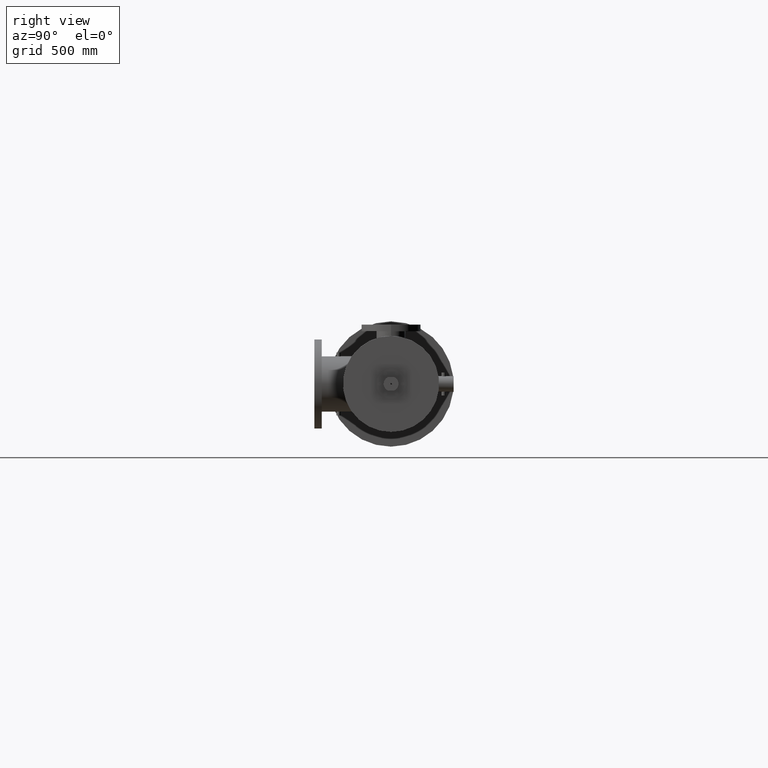
[diagram: clean part render]
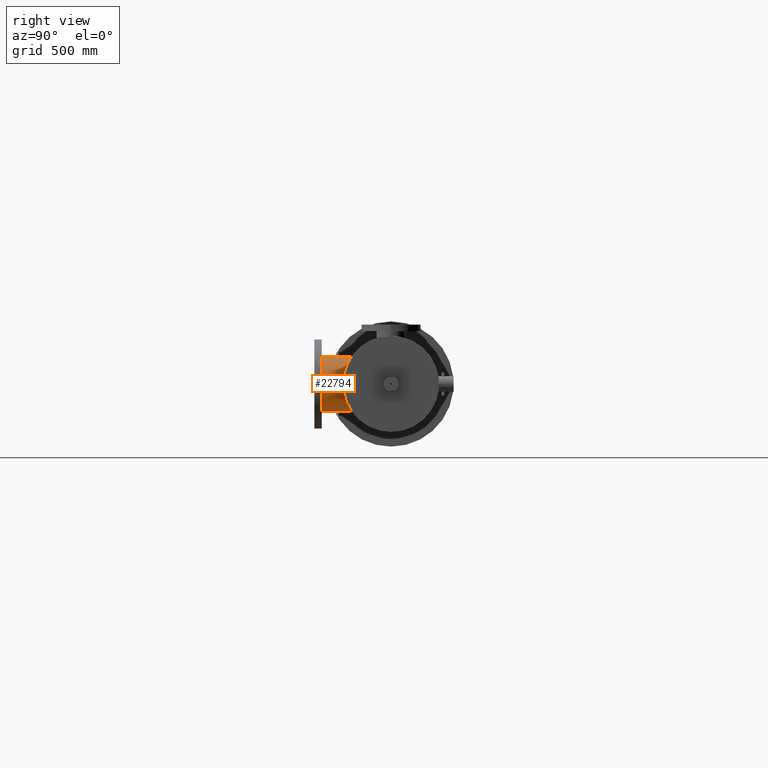
[diagram: same view with one face highlighted and labeled with its STEP entity id]
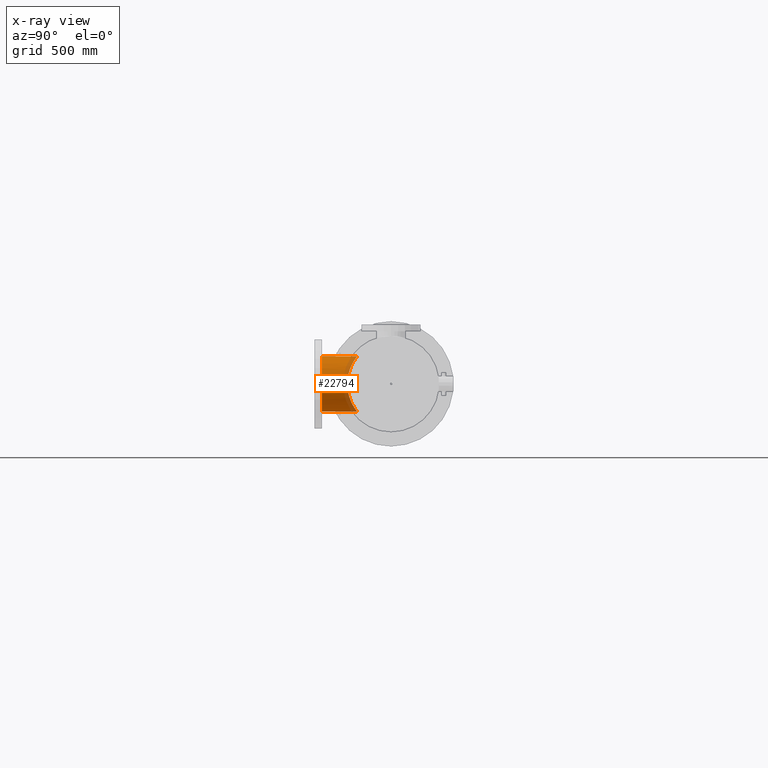
[diagram: x-ray of the same camera — body ghosted, the highlighted face saturated]
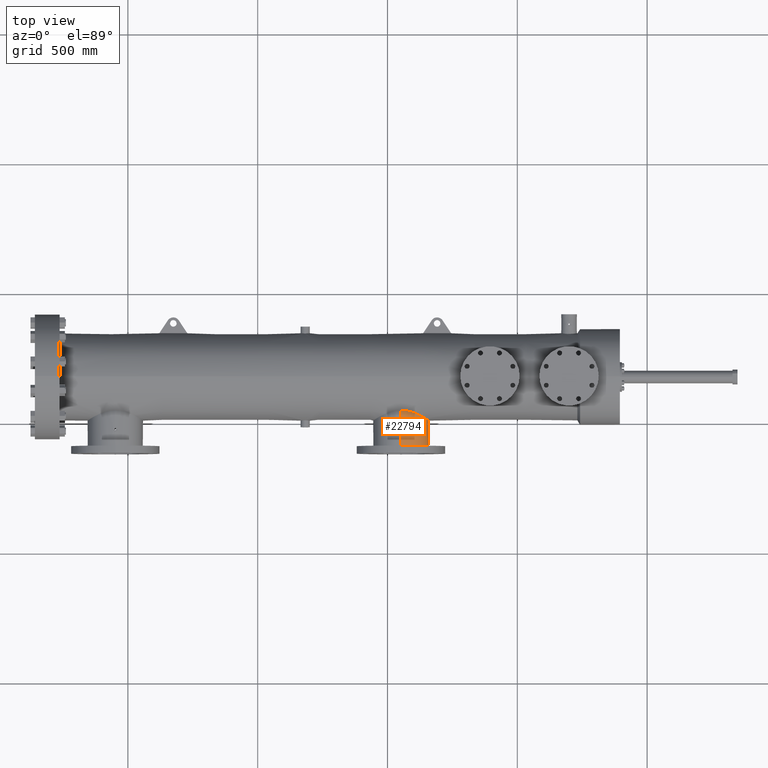
[diagram: same view with one face highlighted and labeled with its STEP entity id]
A machine part, right view. The second image highlights one B-rep face of the part: STEP entity #22794.
The next image is the same camera in x-ray: the body ghosted, the highlighted face saturated — about 16% of this face is hidden behind the body in this view.
A second angle (top view) of the same face is appended — the face is thin or edge-on in the first view.
In plain terms, the highlighted cylindrical surface (edge-blend (fillet) strip) has radius 106.6 mm, axis along (-0, -1, -0).
Its self-contained STEP definition (entity closure, byte-faithful):
#69 = CARTESIAN_POINT ( 'NONE',  ( 754.2548384520098352, 177.5397786504904900, 0.2892845050418509367 ) ) ;
#447 = CARTESIAN_POINT ( 'NONE',  ( 753.8749236517410282, 177.7735012610584704, 1.766765299865173500 ) ) ;
#658 = CARTESIAN_POINT ( 'NONE',  ( 750.3855541936417239, 176.2412953276447354, 4.184640322142247015 ) ) ;
#716 = LINE ( 'NONE', #19864, #3165 ) ;
#727 = EDGE_CURVE ( 'NONE', #9335, #9827, #12488, .T. ) ;
#741 = CARTESIAN_POINT ( 'NONE',  ( 750.1492564820853204, 176.5104973847655856, 4.196067820517943581 ) ) ;
#842 = CARTESIAN_POINT ( 'NONE',  ( 750.2623644285683895, 176.4546765244174651, -4.192273296369847024 ) ) ;
#941 = CARTESIAN_POINT ( 'NONE',  ( 754.1201762186414044, 177.6241405298669065, 1.084158874098487990 ) ) ;
#1095 = CARTESIAN_POINT ( 'NONE',  ( 750.3082377231926330, 176.4116777655992223, -4.189858291017636738 ) ) ;
#1099 = CARTESIAN_POINT ( 'NONE',  ( 750.3707358779988681, 176.0954040126080997, -4.185745948825553064 ) ) ;
#1268 = LINE ( 'NONE', #22371, #11094 ) ;
#1348 = CARTESIAN_POINT ( 'NONE',  ( 750.1387052360765892, 175.8852752453956612, -4.196226897793811084 ) ) ;
#1386 = CARTESIAN_POINT ( 'NONE',  ( 751.8235482011676822, 178.7418424903720791, -3.813343612203149657 ) ) ;
#1551 = CARTESIAN_POINT ( 'NONE',  ( 752.2955889437057522, 178.5705100719954999, -3.557937853033991349 ) ) ;
#1573 = CARTESIAN_POINT ( 'NONE',  ( 750.1691693030006718, 175.8939547221972077, 4.195585073107369389 ) ) ;
#1654 = CARTESIAN_POINT ( 'NONE',  ( 753.3395931786840265, 178.0775165056461731, 2.626627378003344671 ) ) ;
#1721 = CARTESIAN_POINT ( 'NONE',  ( 750.3501728843214096, 179.0275632099823611, -4.189564349351632799 ) ) ;
#1740 = CARTESIAN_POINT ( 'NONE',  ( 752.5195635682141528, 178.4767535566233505, 3.405324754415917976 ) ) ;
#1818 = CARTESIAN_POINT ( 'NONE',  ( 750.2859719614235701, 175.9639373342370732, 4.191068486800307191 ) ) ;
#2535 = DIRECTION ( 'NONE',  ( -0.0000000000000000000, -1.000000000000000000, -0.0000000000000000000 ) ) ;
#2557 = ORIENTED_EDGE ( 'NONE', *, *, #6281, .T. ) ;
#2633 = CARTESIAN_POINT ( 'NONE',  ( 750.3773198795616963, 176.2825580649377173, 4.185261717193525577 ) ) ;
#2720 = CARTESIAN_POINT ( 'NONE',  ( 750.2082162776287078, 176.4877656685664817, 4.194437688984287149 ) ) ;
#2780 = FACE_OUTER_BOUND ( 'NONE', #18796, .T. ) ;
#2786 = VERTEX_POINT ( 'NONE', #8528 ) ;
#2905 = CARTESIAN_POINT ( 'NONE',  ( 750.3218242918072747, 176.3951191159571295, -4.189039397858866920 ) ) ;
#3165 = VECTOR ( 'NONE', #10177, 39.37007874015748143 ) ;
#3323 = CARTESIAN_POINT ( 'NONE',  ( 750.0866480550697588, 175.8770782327513587, -4.196850393700797710 ) ) ;
#3442 = CARTESIAN_POINT ( 'NONE',  ( 750.7694801686928940, 178.9872346955677358, -4.139789755087626588 ) ) ;
#3523 = CARTESIAN_POINT ( 'NONE',  ( 751.5740776184001106, 178.8175590935427692, -3.918731291187877108 ) ) ;
#3546 = CARTESIAN_POINT ( 'NONE',  ( 750.1078141414315041, 175.8791532820270049, 4.196688849958412071 ) ) ;
#3617 = CARTESIAN_POINT ( 'NONE',  ( 750.1368286339787801, 179.0331886654802815, 4.196398396866187319 ) ) ;
#3677 = VERTEX_POINT ( 'NONE', #20673 ) ;
#3682 = CARTESIAN_POINT ( 'NONE',  ( 752.8333760062396323, 178.3349145842654195, -3.157676517960938956 ) ) ;
#3778 = CARTESIAN_POINT ( 'NONE',  ( 750.2532266818192284, 175.9370754100347654, 4.192664436283129348 ) ) ;
#3868 = CARTESIAN_POINT ( 'NONE',  ( 750.3215782125311080, 176.0024226410699271, 4.189054754414168968 ) ) ;
#4032 = CARTESIAN_POINT ( 'NONE',  ( 750.0656234997047704, 173.4747881935789451, 4.196850393700797710 ) ) ;
#4490 = LINE ( 'NONE', #4032, #12220 ) ;
#4666 = CARTESIAN_POINT ( 'NONE',  ( 750.1693278154912150, 176.5044185514122717, 4.195614249100918514 ) ) ;
#4672 = EDGE_CURVE ( 'NONE', #9827, #15639, #6925, .T. ) ;
#4716 = CIRCLE ( 'NONE', #11173, 4.196850393700797710 ) ;
#4763 = CARTESIAN_POINT ( 'NONE',  ( 750.2268712676706173, 176.4777918257164231, -4.193761891790220631 ) ) ;
#4855 = CARTESIAN_POINT ( 'NONE',  ( 750.1697710232267582, 176.5042584589429850, -4.195602639200865625 ) ) ;
#4864 = CARTESIAN_POINT ( 'NONE',  ( 754.2261945003223218, 177.5578641426467641, 0.5682045320912116892 ) ) ;
#4937 = CARTESIAN_POINT ( 'NONE',  ( 750.3876603609564881, 176.1989407532446705, -4.184476727991411238 ) ) ;
#5027 = CARTESIAN_POINT ( 'NONE',  ( 750.2357424893084499, 175.9254029565073836, -4.193410374538689034 ) ) ;
#5111 = CARTESIAN_POINT ( 'NONE',  ( 750.3006871778170535, 175.9786441456322166, -4.190268921380118528 ) ) ;
#5281 = CARTESIAN_POINT ( 'NONE',  ( 750.3876603609563745, 176.1776771399300401, -4.184476727991410350 ) ) ;
#5314 = CARTESIAN_POINT ( 'NONE',  ( 753.6869137072308149, 177.8838869677309162, -2.125645124309016420 ) ) ;
#5333 = EDGE_CURVE ( 'NONE', #25156, #9335, #18828, .T. ) ;
#5340 = EDGE_CURVE ( 'NONE', #15639, #5874, #15363, .T. ) ;
#5401 = CARTESIAN_POINT ( 'NONE',  ( 752.4631271447285599, 178.5009106021298066, -3.445295067813475498 ) ) ;
#5481 = CARTESIAN_POINT ( 'NONE',  ( 752.9320428211335638, 178.2872552675820543, -3.068375055365319959 ) ) ;
#5503 = CARTESIAN_POINT ( 'NONE',  ( 750.7707132293395489, 178.9870454133621820, 4.139551514902442442 ) ) ;
#5591 = CARTESIAN_POINT ( 'NONE',  ( 750.1489148107951905, 175.8878246713716180, 4.196036033753565597 ) ) ;
#5656 = CARTESIAN_POINT ( 'NONE',  ( 753.9832488470369753, 177.7082010232193454, -1.506870611404393490 ) ) ;
#5674 = CARTESIAN_POINT ( 'NONE',  ( 750.1011886381764953, 179.0335600387765567, 4.196850393700793269 ) ) ;
#5767 = CARTESIAN_POINT ( 'NONE',  ( 752.8344053023279230, 178.3344239482308922, 3.156769943473807682 ) ) ;
#5844 = CARTESIAN_POINT ( 'NONE',  ( 750.4215204023811339, 179.0216886738506048, 4.182328613457447553 ) ) ;
#5874 = VERTEX_POINT ( 'NONE', #23410 ) ;
#6281 = EDGE_CURVE ( 'NONE', #5874, #3677, #4490, .T. ) ;
#6305 = CARTESIAN_POINT ( 'NONE',  ( 750.3445772704153569, 176.3601487262615706, 4.187572444736312072 ) ) ;
#6590 = CARTESIAN_POINT ( 'NONE',  ( 750.3876603609564881, 176.2199531635239396, 4.184476727991412126 ) ) ;
#6777 = CARTESIAN_POINT ( 'NONE',  ( 750.3855689438372565, 176.2411481793365056, -4.184639166795110832 ) ) ;
#6925 = B_SPLINE_CURVE_WITH_KNOTS ( 'NONE', 3,
 ( #10518, #18144, #10611, #741, #4666, #22301, #2720, #24329, #8390, #22210, #22121, #14603, #18223, #18400, #6305, #20315, #16509, #10430, #2633, #658, #6590, #12451 ),
 .UNSPECIFIED., .F., .F.,
 ( 4, 2, 2, 2, 2, 2, 2, 2, 2, 2, 4 ),
 ( 0.01278227255279495642, 0.01438050809443447257, 0.01597874363607398873, 0.01677786140689813479, 0.01757697917772228086, 0.01917521471936909500, 0.02077345026101590914, 0.02157256803183525001, 0.02237168580265459089, 0.02396992134429083016, 0.02556815688592706595 ),
 .UNSPECIFIED. ) ;
#6949 = CARTESIAN_POINT ( 'NONE',  ( 750.1495534474223632, 176.5104292679137643, -4.196062709181871853 ) ) ;
#6953 = CARTESIAN_POINT ( 'NONE',  ( 750.3671351975998505, 176.0853536213506345, -4.186007685335715323 ) ) ;
#7040 = CARTESIAN_POINT ( 'NONE',  ( 750.1079279548170007, 176.5187284021070013, -4.196688793392740813 ) ) ;
#7202 = CARTESIAN_POINT ( 'NONE',  ( 750.2621818968019625, 175.9430599397970809, -4.192282108215164449 ) ) ;
#7317 = CARTESIAN_POINT ( 'NONE',  ( 754.1156430505930075, 177.6270287797977971, -1.109228928818584592 ) ) ;
#7495 = CARTESIAN_POINT ( 'NONE',  ( 753.1213424978539024, 178.1925859564589416, 2.879897835397924322 ) ) ;
#7577 = CARTESIAN_POINT ( 'NONE',  ( 750.0868910108528098, 175.8770780919922458, 4.196850393700798598 ) ) ;
#7613 = CARTESIAN_POINT ( 'NONE',  ( 754.0916102272088892, 177.6418209777624782, 1.185841002206296846 ) ) ;
#7641 = CARTESIAN_POINT ( 'NONE',  ( 752.5182718562296031, 178.4773113716621253, -3.406255623476134975 ) ) ;
#7666 = CARTESIAN_POINT ( 'NONE',  ( 752.4645146950857679, 178.5003217752642115, 3.444326905804129701 ) ) ;
#7744 = CARTESIAN_POINT ( 'NONE',  ( 750.2084614124869404, 175.9096599794221163, 4.194464308135322561 ) ) ;
#7829 = CARTESIAN_POINT ( 'NONE',  ( 752.6798533526688288, 178.4057160986552049, 3.283870351100931284 ) ) ;
#8153 = CARTESIAN_POINT ( 'NONE',  ( 750.0656234997047704, 175.8770904135598414, -4.196850393700797710 ) ) ;
#8219 = CARTESIAN_POINT ( 'NONE',  ( 750.0656234997047704, 173.6513553879231608, 0.0000000000000000000 ) ) ;
#8390 = CARTESIAN_POINT ( 'NONE',  ( 750.2358754780294703, 176.4723915807141452, 4.193404780977409985 ) ) ;
#8528 = CARTESIAN_POINT ( 'NONE',  ( 750.0656234997047704, 173.6513553879231608, -4.196850393700797710 ) ) ;
#8669 = CARTESIAN_POINT ( 'NONE',  ( 750.3451599910216601, 176.3601637311178365, -4.187546927821843568 ) ) ;
#8710 = CARTESIAN_POINT ( 'NONE',  ( 753.6863099918321041, 177.8842326918440051, 2.126614965322177309 ) ) ;
#8901 = CARTESIAN_POINT ( 'NONE',  ( 750.3794352201969104, 176.2719939882312588, -4.185102105718075727 ) ) ;
#8905 = CARTESIAN_POINT ( 'NONE',  ( 750.2080192460628041, 175.9100201015646405, -4.194444320057789000 ) ) ;
#8990 = CARTESIAN_POINT ( 'NONE',  ( 750.3550461951141415, 176.3416836024207157, -4.186866773333123071 ) ) ;
#8993 = CARTESIAN_POINT ( 'NONE',  ( 750.1890308133184817, 175.9010584878684540, -4.195069240060603555 ) ) ;
#9250 = CARTESIAN_POINT ( 'NONE',  ( 754.1625385293116324, 177.5977865623516720, 0.9131115904358733104 ) ) ;
#9284 = CARTESIAN_POINT ( 'NONE',  ( 754.2450901643849193, 177.5459332373997086, -0.3832412706837314276 ) ) ;
#9335 = VERTEX_POINT ( 'NONE', #17143 ) ;
#9362 = CARTESIAN_POINT ( 'NONE',  ( 754.2557103031377892, 177.5392178284579359, -0.2408215855183126197 ) ) ;
#9445 = CARTESIAN_POINT ( 'NONE',  ( 753.3813822951904058, 178.0549128989774772, -2.573693693428871665 ) ) ;
#9471 = CARTESIAN_POINT ( 'NONE',  ( 750.3794323887688051, 176.1258601037294227, 4.185102326964425856 ) ) ;
#9550 = CARTESIAN_POINT ( 'NONE',  ( 750.6321761789350830, 179.0042356754967443, 4.160829163214375903 ) ) ;
#9615 = CARTESIAN_POINT ( 'NONE',  ( 750.2086083383642290, 179.0335560172611906, -4.196850393700797710 ) ) ;
#9635 = CARTESIAN_POINT ( 'NONE',  ( 750.3508262063343182, 179.0261180314013529, 4.187755192098854273 ) ) ;
#9723 = CARTESIAN_POINT ( 'NONE',  ( 750.3447208485575857, 176.0379831062923017, 4.187562853491638037 ) ) ;
#9744 = CARTESIAN_POINT ( 'NONE',  ( 750.0656234997047704, 179.0335613702432909, -4.196850393700797710 ) ) ;
#9800 = VERTEX_POINT ( 'NONE', #10128 ) ;
#9811 = CARTESIAN_POINT ( 'NONE',  ( 750.0656234997047704, 179.0335613702432909, 4.196850393700797710 ) ) ;
#9827 = VERTEX_POINT ( 'NONE', #19728 ) ;
#9898 = B_SPLINE_CURVE_WITH_KNOTS ( 'NONE', 3,
 ( #4937, #20487, #6777, #8901, #18854, #18508, #12811, #8990, #8669, #2905, #1095, #14700, #842, #22733, #4763, #14871, #24435, #4855, #6949, #7040, #22651, #14620 ),
 .UNSPECIFIED., .F., .F.,
 ( 4, 2, 2, 2, 2, 2, 2, 2, 2, 2, 4 ),
 ( 0.03835105100156003394, 0.03994847126057212566, 0.04074718139007713069, 0.04154589151958214266, 0.04314331177859620503, 0.04474073203761026740, 0.04633815229662433671, 0.04713686242613648880, 0.04793557255564864089, 0.04953299281467192505, 0.05113041307369520921 ),
 .UNSPECIFIED. ) ;
#10050 = CARTESIAN_POINT ( 'NONE',  ( 750.3876603609564881, 176.1989407532446705, 4.184476727991411238 ) ) ;
#10128 = CARTESIAN_POINT ( 'NONE',  ( 750.0656234997047704, 176.5207910929295281, -4.196850393700797710 ) ) ;
#10177 = DIRECTION ( 'NONE',  ( -0.0000000000000000000, -1.000000000000000000, -0.0000000000000000000 ) ) ;
#10430 = CARTESIAN_POINT ( 'NONE',  ( 750.3712318216843187, 176.3026262131130864, 4.185716470693805924 ) ) ;
#10518 = CARTESIAN_POINT ( 'NONE',  ( 750.0656234997047704, 176.5207910929295281, 4.196850393700797710 ) ) ;
#10611 = CARTESIAN_POINT ( 'NONE',  ( 750.1079620766429343, 176.5187126331155412, 4.196687631338667401 ) ) ;
#11051 = CARTESIAN_POINT ( 'NONE',  ( 750.1075475568181901, 175.8791063742857546, -4.196692407593547003 ) ) ;
#11094 = VECTOR ( 'NONE', #2535, 39.37007874015748143 ) ;
#11141 = CARTESIAN_POINT ( 'NONE',  ( 750.3794317102623381, 176.1258704865011566, -4.185102370272788974 ) ) ;
#11173 = AXIS2_PLACEMENT_3D ( 'NONE', #8219, #24252, #23993 ) ;
#11257 = CARTESIAN_POINT ( 'NONE',  ( 752.1808071199725418, 178.6154565871275679, -3.627334411972417794 ) ) ;
#11364 = CARTESIAN_POINT ( 'NONE',  ( 752.1826001093058949, 178.6147738840259933, 3.626293375403966124 ) ) ;
#11430 = CARTESIAN_POINT ( 'NONE',  ( 753.3395630212015703, 178.0775332787701188, -2.626669156601005195 ) ) ;
#11450 = CARTESIAN_POINT ( 'NONE',  ( 750.3082439469051224, 175.9862099839153586, 4.189857952223411175 ) ) ;
#11513 = CARTESIAN_POINT ( 'NONE',  ( 753.1207937956417027, 178.1928689378089246, -2.880489484353740526 ) ) ;
#11534 = CARTESIAN_POINT ( 'NONE',  ( 753.4622756682622366, 178.0105381505901789, 2.465250114881312626 ) ) ;
#11603 = CARTESIAN_POINT ( 'NONE',  ( 754.1503109557182825, 177.6054392330513849, -0.9739175525324126337 ) ) ;
#11631 = CARTESIAN_POINT ( 'NONE',  ( 750.3876603609566018, 176.1779178715195258, 4.184476727991412126 ) ) ;
#11711 = CARTESIAN_POINT ( 'NONE',  ( 753.5016837810378547, 177.9886872354512946, 2.410019465924709614 ) ) ;
#12047 = CARTESIAN_POINT ( 'NONE',  ( 750.0656234997047704, 175.8770904135598414, 4.196850393700797710 ) ) ;
#12220 = VECTOR ( 'NONE', #19396, 39.37007874015748143 ) ;
#12301 = ORIENTED_EDGE ( 'NONE', *, *, #727, .T. ) ;
#12451 = CARTESIAN_POINT ( 'NONE',  ( 750.3876603609564881, 176.1989407532446705, 4.184476727991411238 ) ) ;
#12488 = LINE ( 'NONE', #24983, #22694 ) ;
#12811 = CARTESIAN_POINT ( 'NONE',  ( 750.3671690603856632, 176.3124384759357213, -4.186005245305874034 ) ) ;
#12988 = VERTEX_POINT ( 'NONE', #18010 ) ;
#13059 = CARTESIAN_POINT ( 'NONE',  ( 750.3451141844067251, 176.0376331099129175, -4.187550069629865312 ) ) ;
#13352 = CARTESIAN_POINT ( 'NONE',  ( 754.2625939395530850, 177.5348598011229626, -0.06315026296003170558 ) ) ;
#13369 = CARTESIAN_POINT ( 'NONE',  ( 750.3876603609564881, 176.1989407532446705, 4.184476727991411238 ) ) ;
#13427 = CARTESIAN_POINT ( 'NONE',  ( 753.5022632736547621, 177.9884230845221964, -2.409907915964154324 ) ) ;
#13514 = CARTESIAN_POINT ( 'NONE',  ( 753.9576771709082550, 177.7237017903108551, -1.571706325018916051 ) ) ;
#13533 = CARTESIAN_POINT ( 'NONE',  ( 752.9329301399635597, 178.2868200906314939, 3.067536922142271472 ) ) ;
#13621 = CARTESIAN_POINT ( 'NONE',  ( 750.3636217082448638, 176.0755495972177300, 4.186263058312257535 ) ) ;
#14364 = CARTESIAN_POINT ( 'NONE',  ( 754.1466592818791241, 177.6076922923256234, 0.9816721056354125174 ) ) ;
#14603 = CARTESIAN_POINT ( 'NONE',  ( 750.3083550052011788, 176.4115700044514767, 4.189852175961843450 ) ) ;
#14620 = CARTESIAN_POINT ( 'NONE',  ( 750.0656234997047704, 176.5207910929295281, -4.196850393700797710 ) ) ;
#14700 = CARTESIAN_POINT ( 'NONE',  ( 750.2785538966934382, 176.4413624390762720, -4.191471675472232761 ) ) ;
#14871 = CARTESIAN_POINT ( 'NONE',  ( 750.2082909228722656, 176.4877275957369989, -4.194435081637656104 ) ) ;
#15053 = CARTESIAN_POINT ( 'NONE',  ( 750.3275672641058236, 176.0113730991341470, -4.188671990230826481 ) ) ;
#15132 = CARTESIAN_POINT ( 'NONE',  ( 750.3077715543804516, 175.9864444286617697, -4.189864318341698812 ) ) ;
#15165 = CARTESIAN_POINT ( 'NONE',  ( 751.1805659721160282, 178.9141329935013971, -4.046653355912249950 ) ) ;
#15336 = CARTESIAN_POINT ( 'NONE',  ( 754.2622135399191166, 177.5351007384541617, 0.1488881047873667485 ) ) ;
#15353 = CARTESIAN_POINT ( 'NONE',  ( 751.4455553996302797, 178.8526566629849412, 3.965952249110654027 ) ) ;
#15363 = B_SPLINE_CURVE_WITH_KNOTS ( 'NONE', 3,
 ( #13369, #11631, #21660, #9471, #25407, #15689, #13621, #23270, #9723, #17417, #3868, #11450, #1818, #19565, #25167, #3778, #17578, #7744, #17667, #1573, #5591, #23357, #3546, #7577, #12047 ),
 .UNSPECIFIED., .F., .F.,
 ( 4, 2, 2, 1, 2, 2, 2, 2, 2, 2, 2, 2, 4 ),
 ( 0.02556815688592706595, 0.02716718890150859184, 0.02796670490929832609, 0.02876622091708806034, 0.02956573692487779459, 0.03036525293266753231, 0.03196428494824114092, 0.03276380095602418607, 0.03356331696380723123, 0.03516234897938066983, 0.03596186498716300722, 0.03676138099494533767, 0.03836041301052045549 ),
 .UNSPECIFIED. ) ;
#15435 = CARTESIAN_POINT ( 'NONE',  ( 750.2440446072560007, 179.0305748072966026, 4.193207526693027987 ) ) ;
#15471 = EDGE_CURVE ( 'NONE', #16666, #12988, #21673, .T. ) ;
#15494 = CARTESIAN_POINT ( 'NONE',  ( 750.9758460880379971, 178.9538110173010637, -4.097557579427045127 ) ) ;
#15510 = CARTESIAN_POINT ( 'NONE',  ( 751.1787558171550927, 178.9145097601231100, 4.047140528529566517 ) ) ;
#15596 = CARTESIAN_POINT ( 'NONE',  ( 751.2458768922008403, 178.8998404056235074, 4.028078223234572874 ) ) ;
#15639 = VERTEX_POINT ( 'NONE', #10050 ) ;
#15689 = CARTESIAN_POINT ( 'NONE',  ( 750.3707085427129186, 176.0953273162355117, 4.185747936108631606 ) ) ;
#15723 = CYLINDRICAL_SURFACE ( 'NONE', #24439, 4.196850393700797710 ) ;
#15799 = ORIENTED_EDGE ( 'NONE', *, *, #5333, .T. ) ;
#15964 = CARTESIAN_POINT ( 'NONE',  ( 753.9817878028312634, 177.7092009742964080, 1.515217616062921380 ) ) ;
#15971 = ORIENTED_EDGE ( 'NONE', *, *, #21507, .F. ) ;
#16509 = CARTESIAN_POINT ( 'NONE',  ( 750.3591140186714483, 176.3318760243537895, 4.186577712222928405 ) ) ;
#16570 = CARTESIAN_POINT ( 'NONE',  ( 753.8157754754915914, 177.8086718433900160, 1.888973806993116789 ) ) ;
#16666 = VERTEX_POINT ( 'NONE', #8153 ) ;
#16730 = DIRECTION ( 'NONE',  ( 0.0000000000000000000, 0.0000000000000000000, -1.000000000000000000 ) ) ;
#17143 = CARTESIAN_POINT ( 'NONE',  ( 750.0656234997047704, 179.0335613702432909, 4.196850393700797710 ) ) ;
#17152 = CARTESIAN_POINT ( 'NONE',  ( 751.4458474467237465, 178.8525576861034097, -3.965815531631180946 ) ) ;
#17170 = EDGE_CURVE ( 'NONE', #16666, #2786, #716, .T. ) ;
#17240 = CARTESIAN_POINT ( 'NONE',  ( 751.9447862756043151, 178.7011215211113893, -3.755037143012486034 ) ) ;
#17323 = CARTESIAN_POINT ( 'NONE',  ( 753.8767732324570261, 177.7724007004973998, -1.762909027647088456 ) ) ;
#17417 = CARTESIAN_POINT ( 'NONE',  ( 750.3392474478185932, 176.0288469788337125, 4.187925261149362477 ) ) ;
#17480 = CARTESIAN_POINT ( 'NONE',  ( 752.6259773355463949, 178.4300095131814601, -3.326056158353039471 ) ) ;
#17500 = CARTESIAN_POINT ( 'NONE',  ( 752.6272056865010427, 178.4294603479605144, 3.325109809188495191 ) ) ;
#17578 = CARTESIAN_POINT ( 'NONE',  ( 750.2269595218210725, 175.9195454691466125, 4.193784820838937222 ) ) ;
#17667 = CARTESIAN_POINT ( 'NONE',  ( 750.1792231082655462, 175.8975499494320900, 4.195323995194177868 ) ) ;
#18010 = CARTESIAN_POINT ( 'NONE',  ( 750.3876603609564881, 176.1989407532446705, -4.184476727991411238 ) ) ;
#18144 = CARTESIAN_POINT ( 'NONE',  ( 750.0866270222816183, 176.5208032615524303, 4.196850393700797710 ) ) ;
#18206 = ORIENTED_EDGE ( 'NONE', *, *, #17170, .F. ) ;
#18223 = CARTESIAN_POINT ( 'NONE',  ( 750.3216811097432810, 176.3953007948191782, 4.189048121273706293 ) ) ;
#18280 = ORIENTED_EDGE ( 'NONE', *, *, #20374, .T. ) ;
#18400 = CARTESIAN_POINT ( 'NONE',  ( 750.3391662291891180, 176.3691580786758664, 4.187930480676273604 ) ) ;
#18508 = CARTESIAN_POINT ( 'NONE',  ( 750.3707649605886445, 176.3023889745067549, -4.185743821370097706 ) ) ;
#18532 = CARTESIAN_POINT ( 'NONE',  ( 750.0656234997047704, 173.4747881935789451, 0.0000000000000000000 ) ) ;
#18772 = CARTESIAN_POINT ( 'NONE',  ( 750.2784029441716029, 175.9563860256947123, -4.191479391778051955 ) ) ;
#18789 = EDGE_CURVE ( 'NONE', #25156, #9800, #1268, .T. ) ;
#18796 = EDGE_LOOP ( 'NONE', ( #15799, #12301, #25114, #25050, #2557, #15971, #18206, #21460, #18280, #21067 ) ) ;
#18828 = B_SPLINE_CURVE_WITH_KNOTS ( 'NONE', 3,
 ( #25233, #9615, #1721, #25064, #3442, #15494, #23095, #15165, #19308, #17152, #3523, #1386, #17240, #11257, #1551, #5401, #7641, #17480, #19149, #3682, #5481, #11513, #21287, #11430, #9445, #23335, #13427, #23251, #5314, #25306, #17323, #13514, #5656, #21457, #23421, #7317, #11603, #25392, #21122, #9284, #19225, #21204, #9362, #25149, #13352, #15336, #69, #4864, #18946, #9250, #14364, #941, #25123, #7613, #21876, #22885, #15964, #447, #16570, #8710, #19645, #25330, #11711, #11534, #21305, #21569, #1654, #25498, #7495, #13533, #5767, #7829, #17500, #1740, #7666, #19477, #11364, #19328, #21478, #21397, #15353, #15596, #15510, #23520, #19401, #5503, #9550, #5844, #9635, #15435, #23440, #3617, #5674, #9811 ),
 .UNSPECIFIED., .F., .F.,
 ( 4, 2, 2, 2, 2, 2, 2, 2, 2, 2, 2, 2, 2, 2, 2, 2, 2, 2, 2, 2, 2, 2, 2, 2, 2, 2, 2, 2, 2, 2, 2, 2, 2, 2, 2, 2, 2, 2, 2, 2, 2, 2, 2, 2, 2, 2, 4 ),
 ( 0.07683609434909102753, 0.08771214026984815171, 0.09858818619060527588, 0.1040262091509890074, 0.1094642321113727390, 0.1203402780321401744, 0.1312163239529076375, 0.1420923698736751006, 0.1475303928340588322, 0.1529684157944425360, 0.1638444617152099991, 0.1747205076359774623, 0.1801585305963644412, 0.1855965535567514202, 0.1964725994775262108, 0.2073486453983010014, 0.2127866683586860375, 0.2182246913190710735, 0.2291007372398443098, 0.2399767831606175184, 0.2426957946408105637, 0.2454148061210036091, 0.2508528290813897832, 0.2617288750021620758, 0.2726049209229343684, 0.2780429438833205702, 0.2807619553635136156, 0.2834809668437067165, 0.2943570127644767886, 0.3052330586852469718, 0.3161091046060170995, 0.3188281160862078134, 0.3215471275663985828, 0.3269851505267791225, 0.3378611964475338736, 0.3487372423682886247, 0.3541752653286693864, 0.3596132882890501481, 0.3704893342098118936, 0.3813653801305735280, 0.3922414260513351625, 0.3976794490117109282, 0.4031174719720868049, 0.4139935178928489945, 0.4194315408532355294, 0.4221505523334340149, 0.4248695638136326114 ),
 .UNSPECIFIED. ) ;
#18854 = CARTESIAN_POINT ( 'NONE',  ( 750.3768874987689514, 176.2821864848381495, -4.185292985225145479 ) ) ;
#18946 = CARTESIAN_POINT ( 'NONE',  ( 754.2049251207416773, 177.5712724893497807, 0.7067280625497962543 ) ) ;
#19022 = CARTESIAN_POINT ( 'NONE',  ( 750.0656234997047704, 175.8770904135598414, -4.196850393700797710 ) ) ;
#19149 = CARTESIAN_POINT ( 'NONE',  ( 752.6786676754732071, 178.4062549800844977, -3.284814878831155749 ) ) ;
#19225 = CARTESIAN_POINT ( 'NONE',  ( 754.2481935919544185, 177.5439717877874273, -0.3477588479886371542 ) ) ;
#19308 = CARTESIAN_POINT ( 'NONE',  ( 751.2476231758618042, 178.8994425310674217, -4.027557501713365795 ) ) ;
#19328 = CARTESIAN_POINT ( 'NONE',  ( 751.9463963004562856, 178.7005686266301154, 3.754235911879713505 ) ) ;
#19396 = DIRECTION ( 'NONE',  ( -0.0000000000000000000, -1.000000000000000000, -0.0000000000000000000 ) ) ;
#19401 = CARTESIAN_POINT ( 'NONE',  ( 750.9758408812460857, 178.9538066231638140, 4.097551562398198399 ) ) ;
#19477 = CARTESIAN_POINT ( 'NONE',  ( 752.2973031024577040, 178.5698222844930854, 3.556854463515791931 ) ) ;
#19565 = CARTESIAN_POINT ( 'NONE',  ( 750.2781667925042939, 175.9568566475641944, 4.191473004143745129 ) ) ;
#19645 = CARTESIAN_POINT ( 'NONE',  ( 753.6159926598415950, 177.9246254379839058, 2.242046911452845848 ) ) ;
#19728 = CARTESIAN_POINT ( 'NONE',  ( 750.0656234997047704, 176.5207910929295281, 4.196850393700797710 ) ) ;
#19864 = CARTESIAN_POINT ( 'NONE',  ( 750.0656234997047704, 173.4747881935789451, -4.196850393700797710 ) ) ;
#20315 = CARTESIAN_POINT ( 'NONE',  ( 750.3545461739540769, 176.3415262462533235, 4.186896448971848095 ) ) ;
#20374 = EDGE_CURVE ( 'NONE', #12988, #9800, #9898, .T. ) ;
#20487 = CARTESIAN_POINT ( 'NONE',  ( 750.3876603609566018, 176.2201827509538248, -4.184476727991412126 ) ) ;
#20673 = CARTESIAN_POINT ( 'NONE',  ( 750.0656234997047704, 173.6513553879231608, 4.196850393700797710 ) ) ;
#20750 = CARTESIAN_POINT ( 'NONE',  ( 750.3876603609564881, 176.1989407532446705, -4.184476727991411238 ) ) ;
#20839 = CARTESIAN_POINT ( 'NONE',  ( 750.1692476365101356, 175.8939824561686009, -4.195583058147798639 ) ) ;
#21002 = CARTESIAN_POINT ( 'NONE',  ( 750.1490603322625930, 175.8878647318245498, -4.196033061656954111 ) ) ;
#21044 = DIRECTION ( 'NONE',  ( -0.0000000000000000000, -1.000000000000000000, -0.0000000000000000000 ) ) ;
#21067 = ORIENTED_EDGE ( 'NONE', *, *, #18789, .F. ) ;
#21088 = CARTESIAN_POINT ( 'NONE',  ( 750.3768785968352404, 176.1156582497056320, -4.185293654692360477 ) ) ;
#21122 = CARTESIAN_POINT ( 'NONE',  ( 754.2273723726289063, 177.5571217257724470, -0.5599959604739400687 ) ) ;
#21204 = CARTESIAN_POINT ( 'NONE',  ( 754.2535062410673845, 177.5406124515180011, -0.2765265584563877943 ) ) ;
#21287 = CARTESIAN_POINT ( 'NONE',  ( 753.2108772479031131, 178.1461386762765926, -2.781906283963620385 ) ) ;
#21305 = CARTESIAN_POINT ( 'NONE',  ( 753.4422175897428815, 178.0215942427967661, 2.492651091036673705 ) ) ;
#21397 = CARTESIAN_POINT ( 'NONE',  ( 751.5744748931922459, 178.8174568913986775, 3.918596672285502791 ) ) ;
#21457 = CARTESIAN_POINT ( 'NONE',  ( 754.0312951878183867, 177.6789188646783657, -1.375461909203477884 ) ) ;
#21460 = ORIENTED_EDGE ( 'NONE', *, *, #15471, .T. ) ;
#21478 = CARTESIAN_POINT ( 'NONE',  ( 751.8248968910580743, 178.7414146477094619, 3.812740424176842780 ) ) ;
#21507 = EDGE_CURVE ( 'NONE', #2786, #3677, #4716, .T. ) ;
#21569 = CARTESIAN_POINT ( 'NONE',  ( 753.3813007678683107, 178.0549566381329214, 2.573793506513233353 ) ) ;
#21660 = CARTESIAN_POINT ( 'NONE',  ( 750.3856204468218039, 176.1570188279382592, 4.184635264463460125 ) ) ;
#21673 = B_SPLINE_CURVE_WITH_KNOTS ( 'NONE', 3,
 ( #19022, #3323, #11051, #1348, #21002, #20839, #8993, #8905, #25028, #5027, #7202, #18772, #5111, #15132, #24855, #15053, #13059, #22984, #6953, #1099, #21088, #11141, #24940, #5281, #20750 ),
 .UNSPECIFIED., .F., .F.,
 ( 4, 2, 2, 1, 2, 2, 2, 2, 2, 2, 2, 2, 4 ),
 ( 0.02555868480189585693, 0.02715773057686444308, 0.02795725346434899117, 0.02875677635183353925, 0.02955629923931808734, 0.03035582212680263542, 0.03195486790176296776, 0.03275439078924031328, 0.03355391367671765879, 0.03515295945166424518, 0.03595248233913753838, 0.03675200522661083158, 0.03835105100156003394 ),
 .UNSPECIFIED. ) ;
#21876 = CARTESIAN_POINT ( 'NONE',  ( 754.0815762766553689, 177.6480134843895655, 1.219382562337680165 ) ) ;
#22121 = CARTESIAN_POINT ( 'NONE',  ( 750.2782920041890975, 176.4416147689147181, 4.191485649190886953 ) ) ;
#22210 = CARTESIAN_POINT ( 'NONE',  ( 750.2620336254735776, 176.4549168852834100, 4.192288271835163727 ) ) ;
#22301 = CARTESIAN_POINT ( 'NONE',  ( 750.1985665662559768, 176.4923254833945521, 4.194755587573457234 ) ) ;
#22371 = CARTESIAN_POINT ( 'NONE',  ( 750.0656234997047704, 173.4747881935789451, -4.196850393700797710 ) ) ;
#22651 = CARTESIAN_POINT ( 'NONE',  ( 750.0868894524310235, 176.5208034135942512, -4.196850393700797710 ) ) ;
#22694 = VECTOR ( 'NONE', #21044, 39.37007874015748143 ) ;
#22733 = CARTESIAN_POINT ( 'NONE',  ( 750.2360141649112393, 176.4723084511795435, -4.193399281928305022 ) ) ;
#22794 = ADVANCED_FACE ( 'NONE', ( #2780 ), #15723, .T. ) ;
#22885 = CARTESIAN_POINT ( 'NONE',  ( 754.0295061644201269, 177.6800683580212024, 1.385880389585674388 ) ) ;
#22984 = CARTESIAN_POINT ( 'NONE',  ( 750.3550098277986535, 176.0561257092840037, -4.186869290343530281 ) ) ;
#23095 = CARTESIAN_POINT ( 'NONE',  ( 751.0443441715613062, 178.9413852738655635, -4.081740553511816749 ) ) ;
#23251 = CARTESIAN_POINT ( 'NONE',  ( 753.6163270511524388, 177.9244356562043095, -2.241526490073074918 ) ) ;
#23270 = CARTESIAN_POINT ( 'NONE',  ( 750.3546489029890836, 176.0565654989848099, 4.186889334378946614 ) ) ;
#23335 = CARTESIAN_POINT ( 'NONE',  ( 753.4628342934828424, 178.0103021503319667, -2.465180407205909585 ) ) ;
#23357 = CARTESIAN_POINT ( 'NONE',  ( 750.1387021826081991, 175.8852775959659880, 4.196226729436656200 ) ) ;
#23410 = CARTESIAN_POINT ( 'NONE',  ( 750.0656234997047704, 175.8770904135598414, 4.196850393700797710 ) ) ;
#23421 = CARTESIAN_POINT ( 'NONE',  ( 754.0536353749093905, 177.6652199035491151, -1.309270024988603787 ) ) ;
#23440 = CARTESIAN_POINT ( 'NONE',  ( 750.2082603014926008, 179.0316968763918908, 4.194577978670073648 ) ) ;
#23520 = CARTESIAN_POINT ( 'NONE',  ( 751.0437698684193037, 178.9414852767671960, 4.081867182453333243 ) ) ;
#23993 = DIRECTION ( 'NONE',  ( 0.0000000000000000000, 0.0000000000000000000, -1.000000000000000000 ) ) ;
#24198 = DIRECTION ( 'NONE',  ( -0.0000000000000000000, -1.000000000000000000, -0.0000000000000000000 ) ) ;
#24252 = DIRECTION ( 'NONE',  ( -0.0000000000000000000, -1.000000000000000000, -0.0000000000000000000 ) ) ;
#24329 = CARTESIAN_POINT ( 'NONE',  ( 750.2268588086863019, 176.4778003229542946, 4.193762439889227700 ) ) ;
#24435 = CARTESIAN_POINT ( 'NONE',  ( 750.1988052614766502, 176.4922148729722551, -4.194747857957914050 ) ) ;
#24439 = AXIS2_PLACEMENT_3D ( 'NONE', #18532, #24198, #16730 ) ;
#24855 = CARTESIAN_POINT ( 'NONE',  ( 750.3212325387996771, 176.0028300509589201, -4.189064657609039344 ) ) ;
#24940 = CARTESIAN_POINT ( 'NONE',  ( 750.3855737971430244, 176.1567564955904004, -4.184638801205499803 ) ) ;
#24983 = CARTESIAN_POINT ( 'NONE',  ( 750.0656234997047704, 173.4747881935789451, 4.196850393700797710 ) ) ;
#25028 = CARTESIAN_POINT ( 'NONE',  ( 750.2266055390605288, 175.9199364413891544, -4.193772107023794327 ) ) ;
#25050 = ORIENTED_EDGE ( 'NONE', *, *, #5340, .T. ) ;
#25064 = CARTESIAN_POINT ( 'NONE',  ( 750.6306088068349709, 179.0044018451046099, -4.161034654069917238 ) ) ;
#25114 = ORIENTED_EDGE ( 'NONE', *, *, #4672, .T. ) ;
#25123 = CARTESIAN_POINT ( 'NONE',  ( 754.1109020867090749, 177.6298895456476146, 1.118261671556100012 ) ) ;
#25149 = CARTESIAN_POINT ( 'NONE',  ( 754.2609369782634303, 177.5359097298463382, -0.1340707302832602477 ) ) ;
#25156 = VERTEX_POINT ( 'NONE', #9744 ) ;
#25167 = CARTESIAN_POINT ( 'NONE',  ( 750.2617705782535040, 175.9434029392325556, 4.192272285927598929 ) ) ;
#25233 = CARTESIAN_POINT ( 'NONE',  ( 750.0656234997047704, 179.0335613702432909, -4.196850393700797710 ) ) ;
#25306 = CARTESIAN_POINT ( 'NONE',  ( 753.8171362379254106, 177.8078709247949689, -1.886335637311148172 ) ) ;
#25330 = CARTESIAN_POINT ( 'NONE',  ( 753.5210304818714349, 177.9778945139859729, 2.382196928972476702 ) ) ;
#25392 = CARTESIAN_POINT ( 'NONE',  ( 754.2061748423121799, 177.5704865615789458, -0.6993007876999665084 ) ) ;
#25407 = CARTESIAN_POINT ( 'NONE',  ( 750.3768371971111719, 176.1155084577406456, 4.185296728148619749 ) ) ;
#25498 = CARTESIAN_POINT ( 'NONE',  ( 753.2112291698188073, 178.1459524460506714, 2.781492522700433234 ) ) ;